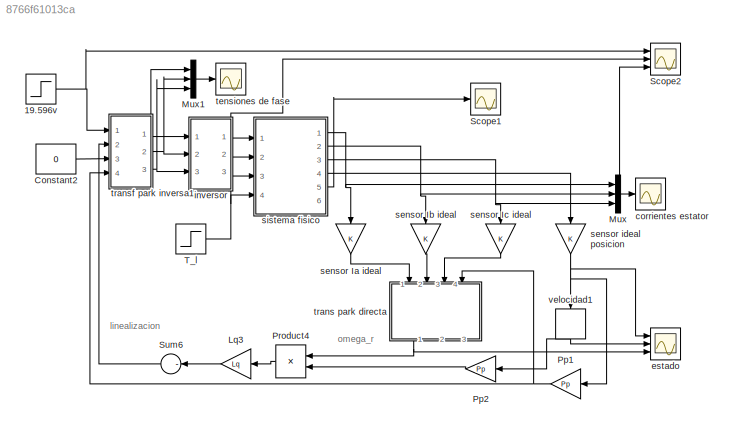
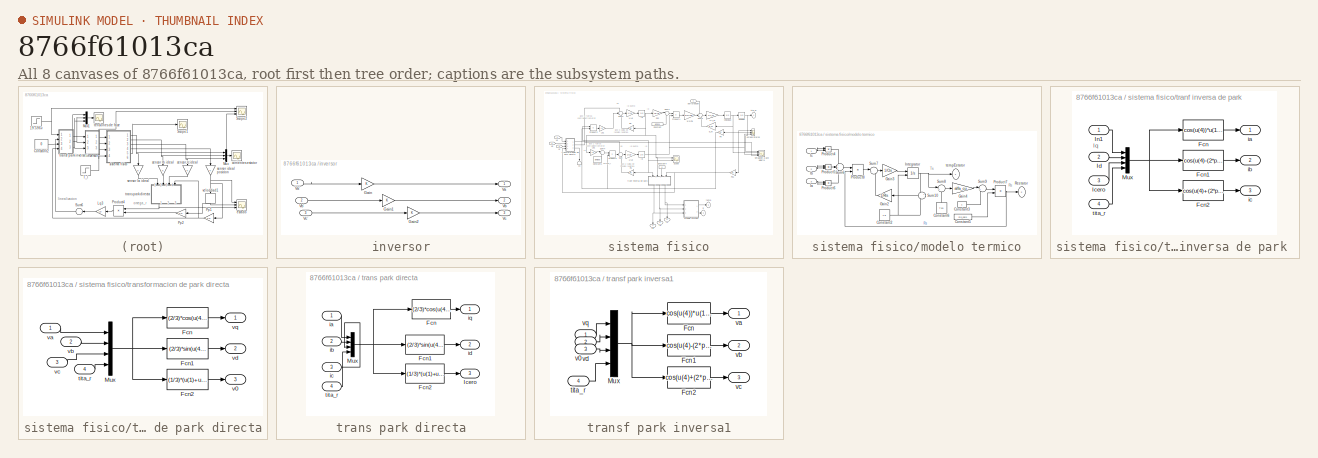
[diagram: thumbnail index - all 8 canvases of the model, root first then tree order]
MODEL slx_8766f61013ca
KIND model
CONFIG AbsTol = auto
CONFIG EnableMultiTasking = on
CONFIG FixedStep = auto
CONFIG MaxStep = 0.0001
CONFIG MinStep = auto
CONFIG RelTol = 1e-3
CONFIG SampleTimeConstraint = Unconstrained
CONFIG Solver = ode45
CONFIG SolverName = ode45
CONFIG StartTime = 0.0
CONFIG StopTime = 5
BLOCK [Step] 19.596v
  After = 19.596
  SampleTime = 0
  Time = 0.1
BLOCK [Constant] Constant2
  Value = 0
BLOCK [Gain] Lq3
  Gain = Lq
  OutDataTypeStr = Inherit: Inherit via internal rule
  ParamDataTypeStr = Inherit: Inherit via internal rule
  SaturateOnIntegerOverflow = off
BLOCK [Mux] Mux
  DisplayOption = bar
  Inputs = 3
  Ports = [3, 1]
BLOCK [Mux] Mux1
  DisplayOption = bar
  Inputs = 3
  Ports = [3, 1]
BLOCK [Gain] Pp1
  Gain = Pp
  OutDataTypeStr = Inherit: Inherit via internal rule
  ParamDataTypeStr = Inherit: Inherit via internal rule
  SaturateOnIntegerOverflow = off
BLOCK [Gain] Pp2
  Gain = Pp
  OutDataTypeStr = Inherit: Inherit via internal rule
  ParamDataTypeStr = Inherit: Inherit via internal rule
  SaturateOnIntegerOverflow = off
BLOCK [Product] Product4
  InputSameDT = off
  OutDataTypeStr = Inherit: Inherit via internal rule
  Ports = [2, 1]
  SaturateOnIntegerOverflow = off
BLOCK [Scope] Scope1
  NumInputPorts = 1
  Ports = [1]
  ScopeSpecificationString = Simulink.scopes.TimeScopeBlockCfg('CurrentConfiguration', extmgr.ConfigurationSet(extmgr.Configuration('Core','General UI',true),extmgr.Configuration('Core','Source UI',true),extmgr.Configuration('Sources','WiredSimulink',true,'DataLoggingVariableName','ScopeData5'),extmgr.Configuration('Visuals','Time Domain',true,'SerializedDisplays',{struct('MinYLimReal','39.7215','MaxYLimReal','42.50653','YLab...<+1487ch>
BLOCK [Scope] Scope2
  NumInputPorts = 3
  Ports = [3]
  ScopeSpecificationString = Simulink.scopes.TimeScopeBlockCfg('CurrentConfiguration', extmgr.ConfigurationSet(extmgr.Configuration('Core','General UI',true),extmgr.Configuration('Core','Source UI',true),extmgr.Configuration('Sources','WiredSimulink',true,'DataLoggingVariableName','ScopeData3'),extmgr.Configuration('Visuals','Time Domain',true,'SerializedDisplays',{struct('MinYLimReal','-2.4495','MaxYLimReal','22.0455','YLabe...<+3182ch>
BLOCK [Sum] Sum6
  IconShape = round
  InputSameDT = off
  Inputs = -
  OutDataTypeStr = Inherit: Inherit via internal rule
  Ports = [1, 1]
  SaturateOnIntegerOverflow = off
BLOCK [Step] T_l
  After = T_l
  SampleTime = 0
  Time = 0.3
BLOCK [Scope] corrientes estator
  NumInputPorts = 1
  Ports = [1]
  ScopeSpecificationString = Simulink.scopes.TimeScopeBlockCfg('CurrentConfiguration', extmgr.ConfigurationSet(extmgr.Configuration('Core','General UI',true,'FigureColor',[0.501960784313725 0.501960784313725 0.501960784313725]),extmgr.Configuration('Core','Source UI',true),extmgr.Configuration('Sources','WiredSimulink',true,'DataLoggingVariableName','ScopeData2'),extmgr.Configuration('Visuals','Time Domain',true,'SerializedDi...<+2048ch>
BLOCK [Scope] estado
  NumInputPorts = 3
  Ports = [3]
  ScopeSpecificationString = Simulink.scopes.TimeScopeBlockCfg('CurrentConfiguration', extmgr.ConfigurationSet(extmgr.Configuration('Core','General UI',true),extmgr.Configuration('Core','Source UI',true),extmgr.Configuration('Sources','WiredSimulink',true,'DataLoggingVariableName','ScopeData4'),extmgr.Configuration('Visuals','Time Domain',true,'SerializedDisplays',{struct('MinYLimReal','-11.76255','MaxYLimReal','105.86296','Y...<+2947ch>
BLOCK [SubSystem] inversor
  Ports = [3, 3]
  RequestExecContextInheritance = off
  Variant = off
BLOCK [Gain] inversor/Gain
  OutDataTypeStr = Inherit: Inherit via internal rule
  ParamDataTypeStr = Inherit: Inherit via internal rule
  SaturateOnIntegerOverflow = off
BLOCK [Gain] inversor/Gain1
  OutDataTypeStr = Inherit: Inherit via internal rule
  ParamDataTypeStr = Inherit: Inherit via internal rule
  SaturateOnIntegerOverflow = off
BLOCK [Gain] inversor/Gain2
  OutDataTypeStr = Inherit: Inherit via internal rule
  ParamDataTypeStr = Inherit: Inherit via internal rule
  SaturateOnIntegerOverflow = off
BLOCK [Outport] inversor/Va
  IconDisplay = Port number
BLOCK [Inport] inversor/Va'
  IconDisplay = Port number
BLOCK [Outport] inversor/Vb
  IconDisplay = Port number
  Port = 2
BLOCK [Inport] inversor/Vb'
  IconDisplay = Port number
  Port = 2
BLOCK [Outport] inversor/Vc
  IconDisplay = Port number
  Port = 3
BLOCK [Inport] inversor/Vc'
  IconDisplay = Port number
  Port = 3
BLOCK [Gain] sensor Ia ideal
  OutDataTypeStr = Inherit: Inherit via internal rule
  ParamDataTypeStr = Inherit: Inherit via internal rule
  SaturateOnIntegerOverflow = off
BLOCK [Gain] sensor Ib ideal
  OutDataTypeStr = Inherit: Inherit via internal rule
  ParamDataTypeStr = Inherit: Inherit via internal rule
  SaturateOnIntegerOverflow = off
BLOCK [Gain] sensor Ic ideal
  OutDataTypeStr = Inherit: Inherit via internal rule
  ParamDataTypeStr = Inherit: Inherit via internal rule
  SaturateOnIntegerOverflow = off
BLOCK [Gain] sensor ideal posicion
  OutDataTypeStr = Inherit: Inherit via internal rule
  ParamDataTypeStr = Inherit: Inherit via internal rule
  SaturateOnIntegerOverflow = off
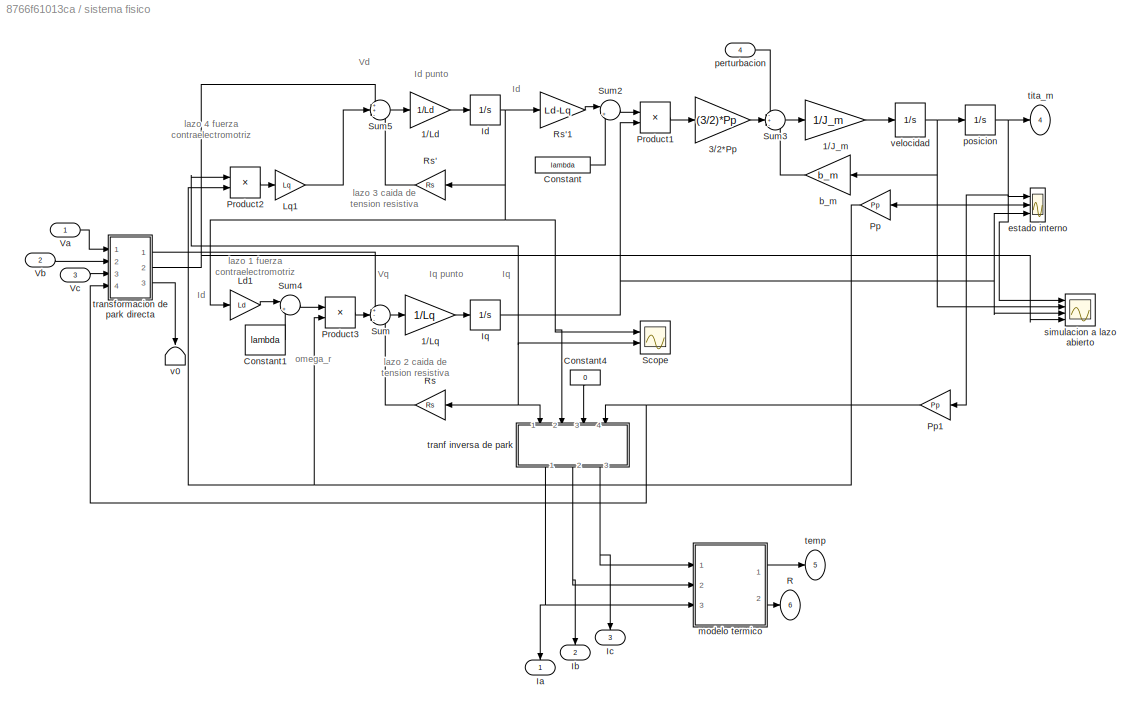
BLOCK [SubSystem] sistema fisico
  Ports = [4, 6]
  RequestExecContextInheritance = off
  Variant = off
BLOCK [Gain] sistema fisico/1//J_m
  Gain = 1/J_m
  OutDataTypeStr = Inherit: Inherit via internal rule
  ParamDataTypeStr = Inherit: Inherit via internal rule
  SaturateOnIntegerOverflow = off
BLOCK [Gain] sistema fisico/1//Ld
  Gain = 1/Ld
  OutDataTypeStr = Inherit: Inherit via internal rule
  ParamDataTypeStr = Inherit: Inherit via internal rule
  SaturateOnIntegerOverflow = off
BLOCK [Gain] sistema fisico/1//Lq
  Gain = 1/Lq
  OutDataTypeStr = Inherit: Inherit via internal rule
  ParamDataTypeStr = Inherit: Inherit via internal rule
  SaturateOnIntegerOverflow = off
BLOCK [Gain] sistema fisico/3//2*Pp
  Gain = (3/2)*Pp
  OutDataTypeStr = Inherit: Inherit via internal rule
  ParamDataTypeStr = Inherit: Inherit via internal rule
  SaturateOnIntegerOverflow = off
BLOCK [Constant] sistema fisico/Constant
  Value = lambda
BLOCK [Constant] sistema fisico/Constant1
  Value = lambda
BLOCK [Constant] sistema fisico/Constant4
  Value = 0
BLOCK [Outport] sistema fisico/Ia
  IconDisplay = Port number
BLOCK [Outport] sistema fisico/Ib
  IconDisplay = Port number
  Port = 2
BLOCK [Outport] sistema fisico/Ic
  IconDisplay = Port number
  Port = 3
BLOCK [Integrator] sistema fisico/Id
  Ports = [1, 1]
BLOCK [Integrator] sistema fisico/Iq
  Ports = [1, 1]
BLOCK [Gain] sistema fisico/Ld1
  Gain = Ld
  OutDataTypeStr = Inherit: Inherit via internal rule
  ParamDataTypeStr = Inherit: Inherit via internal rule
  SaturateOnIntegerOverflow = off
BLOCK [Gain] sistema fisico/Lq1
  Gain = Lq
  OutDataTypeStr = Inherit: Inherit via internal rule
  ParamDataTypeStr = Inherit: Inherit via internal rule
  SaturateOnIntegerOverflow = off
BLOCK [Gain] sistema fisico/Pp
  Gain = Pp
  OutDataTypeStr = Inherit: Inherit via internal rule
  ParamDataTypeStr = Inherit: Inherit via internal rule
  SaturateOnIntegerOverflow = off
BLOCK [Gain] sistema fisico/Pp1
  Gain = Pp
  OutDataTypeStr = Inherit: Inherit via internal rule
  ParamDataTypeStr = Inherit: Inherit via internal rule
  SaturateOnIntegerOverflow = off
BLOCK [Product] sistema fisico/Product1
  InputSameDT = off
  OutDataTypeStr = Inherit: Inherit via internal rule
  Ports = [2, 1]
  SaturateOnIntegerOverflow = off
BLOCK [Product] sistema fisico/Product2
  InputSameDT = off
  OutDataTypeStr = Inherit: Inherit via internal rule
  Ports = [2, 1]
  SaturateOnIntegerOverflow = off
BLOCK [Product] sistema fisico/Product3
  InputSameDT = off
  OutDataTypeStr = Inherit: Inherit via internal rule
  Ports = [2, 1]
  SaturateOnIntegerOverflow = off
BLOCK [Outport] sistema fisico/R
  IconDisplay = Port number
  Port = 6
BLOCK [Gain] sistema fisico/Rs
  Gain = Rs
  OutDataTypeStr = Inherit: Inherit via internal rule
  ParamDataTypeStr = Inherit: Inherit via internal rule
  SaturateOnIntegerOverflow = off
BLOCK [Gain] sistema fisico/Rs'
  Gain = Rs
  OutDataTypeStr = Inherit: Inherit via internal rule
  ParamDataTypeStr = Inherit: Inherit via internal rule
  SaturateOnIntegerOverflow = off
BLOCK [Gain] sistema fisico/Rs'1
  Gain = Ld-Lq
  OutDataTypeStr = Inherit: Inherit via internal rule
  ParamDataTypeStr = Inherit: Inherit via internal rule
  SaturateOnIntegerOverflow = off
BLOCK [Scope] sistema fisico/Scope
  NumInputPorts = 2
  Ports = [2]
  ScopeSpecificationString = Simulink.scopes.TimeScopeBlockCfg('CurrentConfiguration', extmgr.ConfigurationSet(extmgr.Configuration('Core','General UI',true),extmgr.Configuration('Core','Source UI',true),extmgr.Configuration('Sources','WiredSimulink',true,'DataLoggingVariableName','ScopeData7'),extmgr.Configuration('Visuals','Time Domain',true,'SerializedDisplays',{struct('MinYLimReal','7.33326','MaxYLimReal','7.34279','YLabe...<+1691ch>
BLOCK [Sum] sistema fisico/Sum
  IconShape = round
  InputSameDT = off
  Inputs = +--
  OutDataTypeStr = Inherit: Inherit via internal rule
  Ports = [3, 1]
  SaturateOnIntegerOverflow = off
BLOCK [Sum] sistema fisico/Sum2
  IconShape = round
  InputSameDT = off
  Inputs = |++
  OutDataTypeStr = Inherit: Inherit via internal rule
  Ports = [2, 1]
  SaturateOnIntegerOverflow = off
BLOCK [Sum] sistema fisico/Sum3
  IconShape = round
  InputSameDT = off
  Inputs = -+-
  OutDataTypeStr = Inherit: Inherit via internal rule
  Ports = [3, 1]
  SaturateOnIntegerOverflow = off
BLOCK [Sum] sistema fisico/Sum4
  IconShape = round
  InputSameDT = off
  Inputs = |++
  OutDataTypeStr = Inherit: Inherit via internal rule
  Ports = [2, 1]
  SaturateOnIntegerOverflow = off
BLOCK [Sum] sistema fisico/Sum5
  IconShape = round
  InputSameDT = off
  Inputs = ++-
  OutDataTypeStr = Inherit: Inherit via internal rule
  Ports = [3, 1]
  SaturateOnIntegerOverflow = off
BLOCK [Inport] sistema fisico/Va
  IconDisplay = Port number
BLOCK [Inport] sistema fisico/Vb
  IconDisplay = Port number
  Port = 2
BLOCK [Inport] sistema fisico/Vc
  IconDisplay = Port number
  Port = 3
BLOCK [Gain] sistema fisico/b_m
  Gain = b_m
  OutDataTypeStr = Inherit: Inherit via internal rule
  ParamDataTypeStr = Inherit: Inherit via internal rule
  SaturateOnIntegerOverflow = off
BLOCK [Scope] sistema fisico/estado interno
  NumInputPorts = 3
  Ports = [3]
  ScopeSpecificationString = Simulink.scopes.TimeScopeBlockCfg('CurrentConfiguration', extmgr.ConfigurationSet(extmgr.Configuration('Core','General UI',true,'FigureColor',[0.831372549019608 0.815686274509804 0.784313725490196]),extmgr.Configuration('Core','Source UI',true),extmgr.Configuration('Sources','WiredSimulink',true,'DataLoggingSaveFormat','StructureWithTime','DataLoggingMaxPoints','8000','DataLoggingDecimation','1','...<+5598ch>
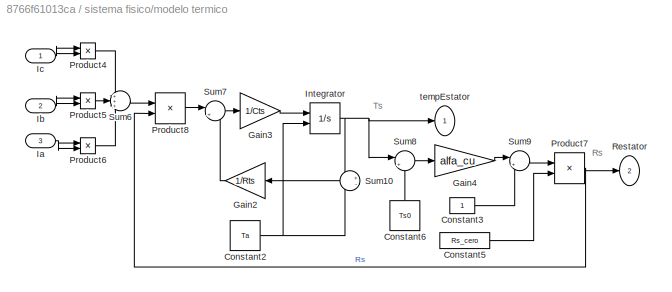
BLOCK [SubSystem] sistema fisico/modelo termico
  Ports = [3, 2]
  RequestExecContextInheritance = off
  Variant = off
BLOCK [Constant] sistema fisico/modelo termico/Constant2
  Value = Ta
BLOCK [Constant] sistema fisico/modelo termico/Constant3
BLOCK [Constant] sistema fisico/modelo termico/Constant5
  Value = Rs_cero
BLOCK [Constant] sistema fisico/modelo termico/Constant6
  Value = Ts0
BLOCK [Gain] sistema fisico/modelo termico/Gain2
  Gain = 1/Rts
  OutDataTypeStr = Inherit: Inherit via internal rule
  ParamDataTypeStr = Inherit: Inherit via internal rule
  SaturateOnIntegerOverflow = off
BLOCK [Gain] sistema fisico/modelo termico/Gain3
  Gain = 1/Cts
  OutDataTypeStr = Inherit: Inherit via internal rule
  ParamDataTypeStr = Inherit: Inherit via internal rule
  SaturateOnIntegerOverflow = off
BLOCK [Gain] sistema fisico/modelo termico/Gain4
  Gain = alfa_cu
  OutDataTypeStr = Inherit: Inherit via internal rule
  ParamDataTypeStr = Inherit: Inherit via internal rule
  SaturateOnIntegerOverflow = off
BLOCK [Inport] sistema fisico/modelo termico/Ia
  IconDisplay = Port number
  Port = 3
BLOCK [Inport] sistema fisico/modelo termico/Ib
  IconDisplay = Port number
  Port = 2
BLOCK [Inport] sistema fisico/modelo termico/Ic
  IconDisplay = Port number
BLOCK [Integrator] sistema fisico/modelo termico/Integrator
  InitialConditionSource = external
  Ports = [2, 1]
BLOCK [Product] sistema fisico/modelo termico/Product4
  InputSameDT = off
  OutDataTypeStr = Inherit: Inherit via internal rule
  Ports = [2, 1]
  SaturateOnIntegerOverflow = off
BLOCK [Product] sistema fisico/modelo termico/Product5
  InputSameDT = off
  OutDataTypeStr = Inherit: Inherit via internal rule
  Ports = [2, 1]
  SaturateOnIntegerOverflow = off
BLOCK [Product] sistema fisico/modelo termico/Product6
  InputSameDT = off
  OutDataTypeStr = Inherit: Inherit via internal rule
  Ports = [2, 1]
  SaturateOnIntegerOverflow = off
BLOCK [Product] sistema fisico/modelo termico/Product7
  InputSameDT = off
  OutDataTypeStr = Inherit: Inherit via internal rule
  Ports = [2, 1]
  SaturateOnIntegerOverflow = off
BLOCK [Product] sistema fisico/modelo termico/Product8
  InputSameDT = off
  OutDataTypeStr = Inherit: Inherit via internal rule
  Ports = [2, 1]
  SaturateOnIntegerOverflow = off
BLOCK [Outport] sistema fisico/modelo termico/Restator
  IconDisplay = Port number
  Port = 2
BLOCK [Sum] sistema fisico/modelo termico/Sum10
  IconShape = round
  InputSameDT = off
  Inputs = +-
  OutDataTypeStr = Inherit: Inherit via internal rule
  Ports = [2, 1]
  SaturateOnIntegerOverflow = off
BLOCK [Sum] sistema fisico/modelo termico/Sum6
  IconShape = round
  InputSameDT = off
  Inputs = +++
  OutDataTypeStr = Inherit: Inherit via internal rule
  Ports = [3, 1]
  SaturateOnIntegerOverflow = off
BLOCK [Sum] sistema fisico/modelo termico/Sum7
  IconShape = round
  InputSameDT = off
  Inputs = |+-
  OutDataTypeStr = Inherit: Inherit via internal rule
  Ports = [2, 1]
  SaturateOnIntegerOverflow = off
BLOCK [Sum] sistema fisico/modelo termico/Sum8
  IconShape = round
  InputSameDT = off
  Inputs = |+-
  OutDataTypeStr = Inherit: Inherit via internal rule
  Ports = [2, 1]
  SaturateOnIntegerOverflow = off
BLOCK [Sum] sistema fisico/modelo termico/Sum9
  IconShape = round
  InputSameDT = off
  Inputs = |++
  OutDataTypeStr = Inherit: Inherit via internal rule
  Ports = [2, 1]
  SaturateOnIntegerOverflow = off
BLOCK [Outport] sistema fisico/modelo termico/tempEstator
  IconDisplay = Port number
BLOCK [Inport] sistema fisico/perturbacion
  IconDisplay = Port number
  Port = 4
BLOCK [Integrator] sistema fisico/posicion
  Ports = [1, 1]
BLOCK [Scope] sistema fisico/simulacion a lazo abierto
  NumInputPorts = 4
  Ports = [4]
  ScopeSpecificationString = Simulink.scopes.TimeScopeBlockCfg('CurrentConfiguration', extmgr.ConfigurationSet(extmgr.Configuration('Core','General UI',true),extmgr.Configuration('Core','Source UI',true),extmgr.Configuration('Sources','WiredSimulink',true,'DataLoggingVariableName','ScopeData6'),extmgr.Configuration('Visuals','Time Domain',true,'SerializedDisplays',{struct('MinYLimReal','-256.50439','MaxYLimReal','2308.53949',...<+3501ch>
BLOCK [Outport] sistema fisico/temp
  IconDisplay = Port number
  Port = 5
BLOCK [Outport] sistema fisico/tita_m
  IconDisplay = Port number
  Port = 4
BLOCK [SubSystem] sistema fisico/tranf inversa de park 
  Ports = [4, 3]
  RequestExecContextInheritance = off
  Variant = off
BLOCK [Fcn] sistema fisico/tranf inversa de park /Fcn
  Expr = cos(u(4))*u(1)+sin(u(4))*u(2)+u(3)
BLOCK [Fcn] sistema fisico/tranf inversa de park /Fcn1
  Expr = cos(u(4)-(2*pi/3))*u(1)+sin(u(4)-(2*pi/3))*u(2)+u(3)
BLOCK [Fcn] sistema fisico/tranf inversa de park /Fcn2
  Expr = cos(u(4)+(2*pi/3))*u(1)+sin(u(4)+(2*pi/3))*u(2)+u(3)
BLOCK [Inport] sistema fisico/tranf inversa de park /Icero
  IconDisplay = Port number
  Port = 3
BLOCK [Inport] sistema fisico/tranf inversa de park /Id
  IconDisplay = Port number
  Port = 2
BLOCK [Inport] sistema fisico/tranf inversa de park /In1
  IconDisplay = Port number
BLOCK [Mux] sistema fisico/tranf inversa de park /Mux
  DisplayOption = bar
  Ports = [4, 1]
BLOCK [Outport] sistema fisico/tranf inversa de park /ia
  IconDisplay = Port number
BLOCK [Outport] sistema fisico/tranf inversa de park /ib
  IconDisplay = Port number
  Port = 2
BLOCK [Outport] sistema fisico/tranf inversa de park /ic
  IconDisplay = Port number
  Port = 3
BLOCK [Inport] sistema fisico/tranf inversa de park /tita_r
  IconDisplay = Port number
  Port = 4
BLOCK [SubSystem] sistema fisico/transformacion de park directa
  Ports = [4, 3]
  RequestExecContextInheritance = off
  Variant = off
BLOCK [Fcn] sistema fisico/transformacion de park directa/Fcn
  Expr = (2/3)*cos(u(4))*u(1)+(2/3)*cos(u(4)-(2*pi/3))*u(2)+(2/3)*cos(u(4)+(2*pi/3))*u(3)
BLOCK [Fcn] sistema fisico/transformacion de park directa/Fcn1
  Expr = (2/3)*sin(u(4))*u(1)+(2/3)*sin(u(4)-(2*pi/3))*u(2)+(2/3)*sin(u(4)+(2*pi/3))*u(3)
BLOCK [Fcn] sistema fisico/transformacion de park directa/Fcn2
  Expr = (1/3)*(u(1)+u(2)+u(3))
BLOCK [Mux] sistema fisico/transformacion de park directa/Mux
  DisplayOption = bar
  Ports = [4, 1]
BLOCK [Inport] sistema fisico/transformacion de park directa/tita_r
  IconDisplay = Port number
  Port = 4
BLOCK [Outport] sistema fisico/transformacion de park directa/v0
  IconDisplay = Port number
  Port = 3
BLOCK [Inport] sistema fisico/transformacion de park directa/va
  IconDisplay = Port number
BLOCK [Inport] sistema fisico/transformacion de park directa/vb
  IconDisplay = Port number
  Port = 2
BLOCK [Inport] sistema fisico/transformacion de park directa/vc
  IconDisplay = Port number
  Port = 3
BLOCK [Outport] sistema fisico/transformacion de park directa/vd
  IconDisplay = Port number
  Port = 2
BLOCK [Outport] sistema fisico/transformacion de park directa/vq
  IconDisplay = Port number
BLOCK [Terminator] sistema fisico/v0
BLOCK [Integrator] sistema fisico/velocidad
  ContinuousStateAttributes = 'velocidad'
  Ports = [1, 1]
BLOCK [Scope] tensiones de fase
  NumInputPorts = 1
  Ports = [1]
  ScopeSpecificationString = Simulink.scopes.TimeScopeBlockCfg('CurrentConfiguration', extmgr.ConfigurationSet(extmgr.Configuration('Core','General UI',true),extmgr.Configuration('Core','Source UI',true),extmgr.Configuration('Sources','WiredSimulink',true,'DataLoggingVariableName','ScopeData1'),extmgr.Configuration('Visuals','Time Domain',true,'SerializedDisplays',{struct('MinYLimReal','-56.95261','MaxYLimReal','59.16529','YL...<+1810ch>
BLOCK [SubSystem] trans park directa
  Ports = [4, 3]
  RequestExecContextInheritance = off
  Variant = off
BLOCK [Fcn] trans park directa/Fcn
  Expr = (2/3)*cos(u(4))*u(1)+(2/3)*cos(u(4)-(2*pi/3))*u(2)+(2/3)*cos(u(4)+(2*pi/3))*u(3)
BLOCK [Fcn] trans park directa/Fcn1
  Expr = (2/3)*sin(u(4))*u(1)+(2/3)*sin(u(4)-(2*pi/3))*u(2)+(2/3)*sin(u(4)+(2*pi/3))*u(3)
BLOCK [Fcn] trans park directa/Fcn2
  Expr = (1/3)*(u(1)+u(2)+u(3))
BLOCK [Outport] trans park directa/Icero
  IconDisplay = Port number
  Port = 3
BLOCK [Mux] trans park directa/Mux
  DisplayOption = bar
  Ports = [4, 1]
BLOCK [Inport] trans park directa/ia
  IconDisplay = Port number
BLOCK [Inport] trans park directa/ib
  IconDisplay = Port number
  Port = 2
BLOCK [Inport] trans park directa/ic
  IconDisplay = Port number
  Port = 3
BLOCK [Outport] trans park directa/id
  IconDisplay = Port number
  Port = 2
BLOCK [Outport] trans park directa/iq
  IconDisplay = Port number
BLOCK [Inport] trans park directa/tita_r
  IconDisplay = Port number
  Port = 4
BLOCK [SubSystem] transf park inversa1
  Ports = [4, 3]
  RequestExecContextInheritance = off
  Variant = off
BLOCK [Fcn] transf park inversa1/Fcn
  Expr = cos(u(4))*u(1)+sin(u(4))*u(2)+u(3)
BLOCK [Fcn] transf park inversa1/Fcn1
  Expr = cos(u(4)-(2*pi/3))*u(1)+sin(u(4)-(2*pi/3))*u(2)+u(3)
BLOCK [Fcn] transf park inversa1/Fcn2
  Expr = cos(u(4)+(2*pi/3))*u(1)+sin(u(4)+(2*pi/3))*u(2)+u(3)
BLOCK [Mux] transf park inversa1/Mux
  DisplayOption = bar
  Ports = [4, 1]
BLOCK [Inport] transf park inversa1/tita_r
  IconDisplay = Port number
  Port = 4
BLOCK [Inport] transf park inversa1/v0
  IconDisplay = Port number
  Port = 3
BLOCK [Outport] transf park inversa1/va
  IconDisplay = Port number
BLOCK [Outport] transf park inversa1/vb
  IconDisplay = Port number
  Port = 2
BLOCK [Outport] transf park inversa1/vc
  IconDisplay = Port number
  Port = 3
BLOCK [Inport] transf park inversa1/vd
  IconDisplay = Port number
  Port = 2
BLOCK [Inport] transf park inversa1/vq
  IconDisplay = Port number
BLOCK [Derivative] velocidad1
ANNOTATION (root): linealizacion
ANNOTATION (root): omega_r
ANNOTATION sistema fisico: Id
ANNOTATION sistema fisico: Id punto
ANNOTATION sistema fisico: Iq
ANNOTATION sistema fisico: Iq punto
ANNOTATION sistema fisico: Vd
ANNOTATION sistema fisico: Vq
ANNOTATION sistema fisico: lazo 1 fuerza contraelectromotriz
ANNOTATION sistema fisico: lazo 2 caida de tension resistiva
ANNOTATION sistema fisico: lazo 3 caida de tension resistiva
ANNOTATION sistema fisico: lazo 4 fuerza contraelectromotriz
ANNOTATION sistema fisico: omega_r
ANNOTATION sistema fisico/modelo termico: Rs
ANNOTATION sistema fisico/modelo termico: Ts
ANNOTATION sistema fisico/tranf inversa de park : Iq
NET 19.596v:1 -> Scope2:1, transf park inversa1:1
LINE Constant2:1 -> transf park inversa1:3
LINE Lq3:1 -> Sum6:1
LINE Mux1:1 -> tensiones de fase:1
NET Mux:1 -> Scope2:3, corrientes estator:1
NET Pp1:1 -> trans park directa:4, transf park inversa1:4
LINE Pp2:1 -> Product4:2
LINE Product4:1 -> Lq3:1
LINE Sum6:1 -> transf park inversa1:2
NET T_l:1 -> Scope2:2, sistema fisico:4
LINE inversor/Gain1:1 -> inversor/Vb:1
LINE inversor/Gain2:1 -> inversor/Vc:1
LINE inversor/Gain:1 -> inversor/Va:1
LINE inversor/Va':1 -> inversor/Gain:1
LINE inversor/Vb':1 -> inversor/Gain1:1
LINE inversor/Vc':1 -> inversor/Gain2:1
LINE inversor:1 -> sistema fisico:1
LINE inversor:2 -> sistema fisico:2
LINE inversor:3 -> sistema fisico:3
LINE sensor Ia ideal:1 -> trans park directa:1
LINE sensor Ib ideal:1 -> trans park directa:2
LINE sensor Ic ideal:1 -> trans park directa:3
NET sensor ideal posicion:1 -> Pp1:1, estado:1, velocidad1:1
LINE sistema fisico/1//J_m:1 -> sistema fisico/velocidad:1
LINE sistema fisico/1//Ld:1 -> sistema fisico/Id:1
LINE sistema fisico/1//Lq:1 -> sistema fisico/Iq:1
LINE sistema fisico/3//2*Pp:1 -> sistema fisico/Sum3:2
LINE sistema fisico/Constant1:1 -> sistema fisico/Sum4:2
LINE sistema fisico/Constant4:1 -> sistema fisico/tranf inversa de park :3
LINE sistema fisico/Constant:1 -> sistema fisico/Sum2:2
NET sistema fisico/Id:1 -> sistema fisico/Ld1:1, sistema fisico/Rs'1:1, sistema fisico/Rs':1, sistema fisico/Scope:1, sistema fisico/tranf inversa de park :2
NET sistema fisico/Iq:1 -> sistema fisico/Product1:2, sistema fisico/Product2:1, sistema fisico/Rs:1, sistema fisico/Scope:2, sistema fisico/estado interno:3, sistema fisico/simulacion a lazo abierto:3, sistema fisico/tranf inversa de park :1
LINE sistema fisico/Ld1:1 -> sistema fisico/Sum4:1
LINE sistema fisico/Lq1:1 -> sistema fisico/Sum5:2
NET sistema fisico/Pp1:1 -> sistema fisico/tranf inversa de park :4, sistema fisico/transformacion de park directa:4
NET sistema fisico/Pp:1 -> sistema fisico/Product2:2, sistema fisico/Product3:2
LINE sistema fisico/Product1:1 -> sistema fisico/3//2*Pp:1
LINE sistema fisico/Product2:1 -> sistema fisico/Lq1:1
LINE sistema fisico/Product3:1 -> sistema fisico/Sum:2
LINE sistema fisico/Rs'1:1 -> sistema fisico/Sum2:1
LINE sistema fisico/Rs':1 -> sistema fisico/Sum5:3
LINE sistema fisico/Rs:1 -> sistema fisico/Sum:3
LINE sistema fisico/Sum2:1 -> sistema fisico/Product1:1
LINE sistema fisico/Sum3:1 -> sistema fisico/1//J_m:1
LINE sistema fisico/Sum4:1 -> sistema fisico/Product3:1
LINE sistema fisico/Sum5:1 -> sistema fisico/1//Ld:1
LINE sistema fisico/Sum:1 -> sistema fisico/1//Lq:1
LINE sistema fisico/Va:1 -> sistema fisico/transformacion de park directa:1
LINE sistema fisico/Vb:1 -> sistema fisico/transformacion de park directa:2
LINE sistema fisico/Vc:1 -> sistema fisico/transformacion de park directa:3
LINE sistema fisico/b_m:1 -> sistema fisico/Sum3:3
NET sistema fisico/modelo termico/Constant2:1 -> sistema fisico/modelo termico/Integrator:2, sistema fisico/modelo termico/Sum10:2
LINE sistema fisico/modelo termico/Constant3:1 -> sistema fisico/modelo termico/Sum9:2
LINE sistema fisico/modelo termico/Constant5:1 -> sistema fisico/modelo termico/Product7:2
LINE sistema fisico/modelo termico/Constant6:1 -> sistema fisico/modelo termico/Sum8:2
LINE sistema fisico/modelo termico/Gain2:1 -> sistema fisico/modelo termico/Sum7:2
LINE sistema fisico/modelo termico/Gain3:1 -> sistema fisico/modelo termico/Integrator:1
LINE sistema fisico/modelo termico/Gain4:1 -> sistema fisico/modelo termico/Sum9:1
NET sistema fisico/modelo termico/Ia:1 -> sistema fisico/modelo termico/Product6:1, sistema fisico/modelo termico/Product6:2
NET sistema fisico/modelo termico/Ib:1 -> sistema fisico/modelo termico/Product5:1, sistema fisico/modelo termico/Product5:2
NET sistema fisico/modelo termico/Ic:1 -> sistema fisico/modelo termico/Product4:1, sistema fisico/modelo termico/Product4:2
NET sistema fisico/modelo termico/Integrator:1 -> sistema fisico/modelo termico/Sum10:1, sistema fisico/modelo termico/Sum8:1, sistema fisico/modelo termico/tempEstator:1
LINE sistema fisico/modelo termico/Product4:1 -> sistema fisico/modelo termico/Sum6:1
LINE sistema fisico/modelo termico/Product5:1 -> sistema fisico/modelo termico/Sum6:2
LINE sistema fisico/modelo termico/Product6:1 -> sistema fisico/modelo termico/Sum6:3
NET sistema fisico/modelo termico/Product7:1 -> sistema fisico/modelo termico/Product8:2, sistema fisico/modelo termico/Restator:1
LINE sistema fisico/modelo termico/Product8:1 -> sistema fisico/modelo termico/Sum7:1
LINE sistema fisico/modelo termico/Sum10:1 -> sistema fisico/modelo termico/Gain2:1
LINE sistema fisico/modelo termico/Sum6:1 -> sistema fisico/modelo termico/Product8:1
LINE sistema fisico/modelo termico/Sum7:1 -> sistema fisico/modelo termico/Gain3:1
LINE sistema fisico/modelo termico/Sum8:1 -> sistema fisico/modelo termico/Gain4:1
LINE sistema fisico/modelo termico/Sum9:1 -> sistema fisico/modelo termico/Product7:1
LINE sistema fisico/modelo termico:1 -> sistema fisico/temp:1
LINE sistema fisico/modelo termico:2 -> sistema fisico/R:1
LINE sistema fisico/perturbacion:1 -> sistema fisico/Sum3:1
NET sistema fisico/posicion:1 -> sistema fisico/Pp1:1, sistema fisico/estado interno:1, sistema fisico/simulacion a lazo abierto:1, sistema fisico/tita_m:1
LINE sistema fisico/tranf inversa de park /Fcn1:1 -> sistema fisico/tranf inversa de park /ib:1
LINE sistema fisico/tranf inversa de park /Fcn2:1 -> sistema fisico/tranf inversa de park /ic:1
LINE sistema fisico/tranf inversa de park /Fcn:1 -> sistema fisico/tranf inversa de park /ia:1
LINE sistema fisico/tranf inversa de park /Icero:1 -> sistema fisico/tranf inversa de park /Mux:3
LINE sistema fisico/tranf inversa de park /Id:1 -> sistema fisico/tranf inversa de park /Mux:2
LINE sistema fisico/tranf inversa de park /In1:1 -> sistema fisico/tranf inversa de park /Mux:1
NET sistema fisico/tranf inversa de park /Mux:1 -> sistema fisico/tranf inversa de park /Fcn1:1, sistema fisico/tranf inversa de park /Fcn2:1, sistema fisico/tranf inversa de park /Fcn:1
LINE sistema fisico/tranf inversa de park /tita_r:1 -> sistema fisico/tranf inversa de park /Mux:4
NET sistema fisico/tranf inversa de park :1 -> sistema fisico/Ia:1, sistema fisico/modelo termico:3
NET sistema fisico/tranf inversa de park :2 -> sistema fisico/Ib:1, sistema fisico/modelo termico:2
NET sistema fisico/tranf inversa de park :3 -> sistema fisico/Ic:1, sistema fisico/modelo termico:1
LINE sistema fisico/transformacion de park directa/Fcn1:1 -> sistema fisico/transformacion de park directa/vd:1
LINE sistema fisico/transformacion de park directa/Fcn2:1 -> sistema fisico/transformacion de park directa/v0:1
LINE sistema fisico/transformacion de park directa/Fcn:1 -> sistema fisico/transformacion de park directa/vq:1
NET sistema fisico/transformacion de park directa/Mux:1 -> sistema fisico/transformacion de park directa/Fcn1:1, sistema fisico/transformacion de park directa/Fcn2:1, sistema fisico/transformacion de park directa/Fcn:1
LINE sistema fisico/transformacion de park directa/tita_r:1 -> sistema fisico/transformacion de park directa/Mux:4
LINE sistema fisico/transformacion de park directa/va:1 -> sistema fisico/transformacion de park directa/Mux:1
LINE sistema fisico/transformacion de park directa/vb:1 -> sistema fisico/transformacion de park directa/Mux:2
LINE sistema fisico/transformacion de park directa/vc:1 -> sistema fisico/transformacion de park directa/Mux:3
LINE sistema fisico/transformacion de park directa:1 -> sistema fisico/Sum:1
NET sistema fisico/transformacion de park directa:2 -> sistema fisico/Sum5:1, sistema fisico/simulacion a lazo abierto:4
LINE sistema fisico/transformacion de park directa:3 -> sistema fisico/v0:1
NET sistema fisico/velocidad:1 -> sistema fisico/Pp:1, sistema fisico/b_m:1, sistema fisico/estado interno:2, sistema fisico/posicion:1, sistema fisico/simulacion a lazo abierto:2
NET sistema fisico:1 -> Mux:1, sensor Ia ideal:1
NET sistema fisico:2 -> Mux:2, sensor Ib ideal:1
NET sistema fisico:3 -> Mux:3, sensor Ic ideal:1
LINE sistema fisico:4 -> sensor ideal posicion:1
LINE sistema fisico:5 -> Scope1:1
LINE trans park directa/Fcn1:1 -> trans park directa/id:1
LINE trans park directa/Fcn2:1 -> trans park directa/Icero:1
LINE trans park directa/Fcn:1 -> trans park directa/iq:1
NET trans park directa/Mux:1 -> trans park directa/Fcn1:1, trans park directa/Fcn2:1, trans park directa/Fcn:1
LINE trans park directa/ia:1 -> trans park directa/Mux:1
LINE trans park directa/ib:1 -> trans park directa/Mux:2
LINE trans park directa/ic:1 -> trans park directa/Mux:3
LINE trans park directa/tita_r:1 -> trans park directa/Mux:4
NET trans park directa:1 -> Product4:1, estado:3
LINE transf park inversa1/Fcn1:1 -> transf park inversa1/vb:1
LINE transf park inversa1/Fcn2:1 -> transf park inversa1/vc:1
LINE transf park inversa1/Fcn:1 -> transf park inversa1/va:1
NET transf park inversa1/Mux:1 -> transf park inversa1/Fcn1:1, transf park inversa1/Fcn2:1, transf park inversa1/Fcn:1
LINE transf park inversa1/tita_r:1 -> transf park inversa1/Mux:4
LINE transf park inversa1/v0:1 -> transf park inversa1/Mux:3
LINE transf park inversa1/vd:1 -> transf park inversa1/Mux:2
LINE transf park inversa1/vq:1 -> transf park inversa1/Mux:1
NET transf park inversa1:1 -> Mux1:1, inversor:1
NET transf park inversa1:2 -> Mux1:2, inversor:2
NET transf park inversa1:3 -> Mux1:3, inversor:3
NET velocidad1:1 -> Pp2:1, estado:2
note: NET lines group one-source signal fan-out (src -> all destinations, sorted); 1:1 wires keep LINE
